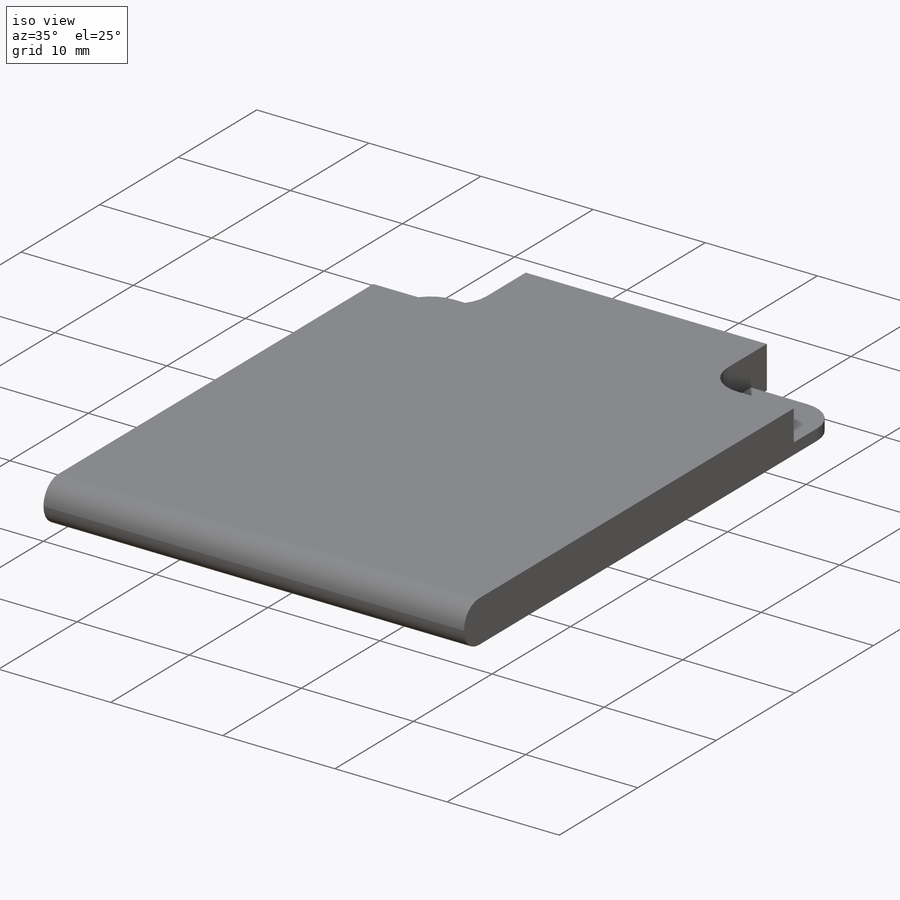
[diagram: iso view]
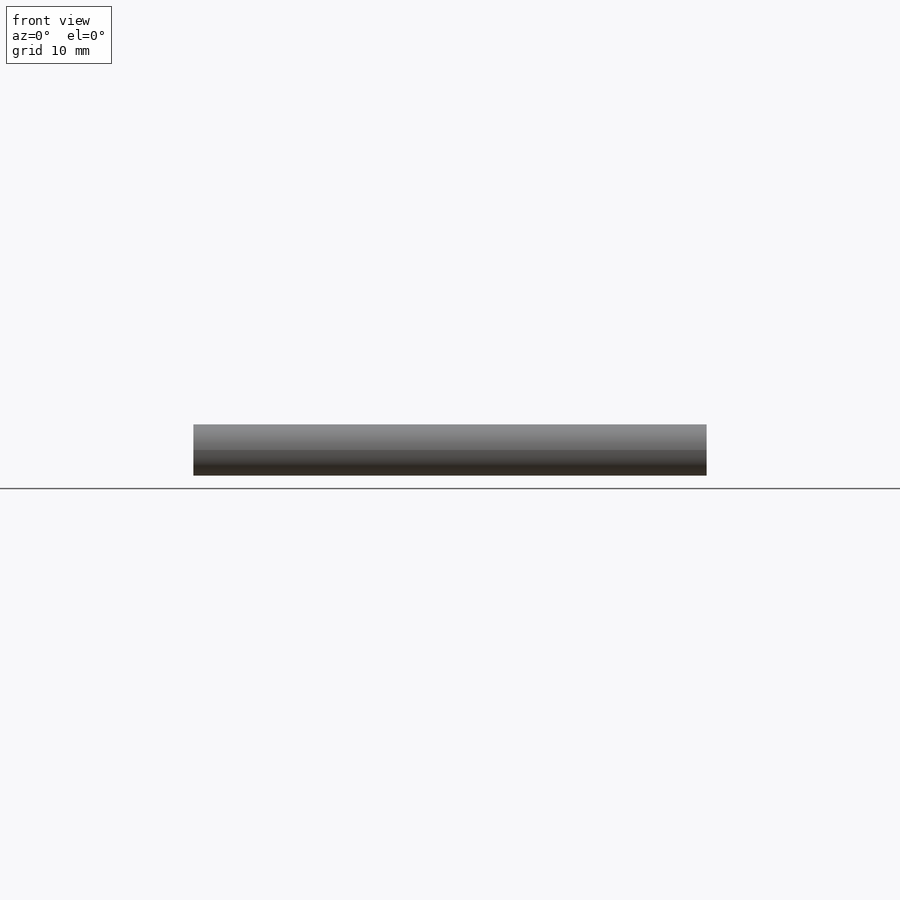
[diagram: front view]
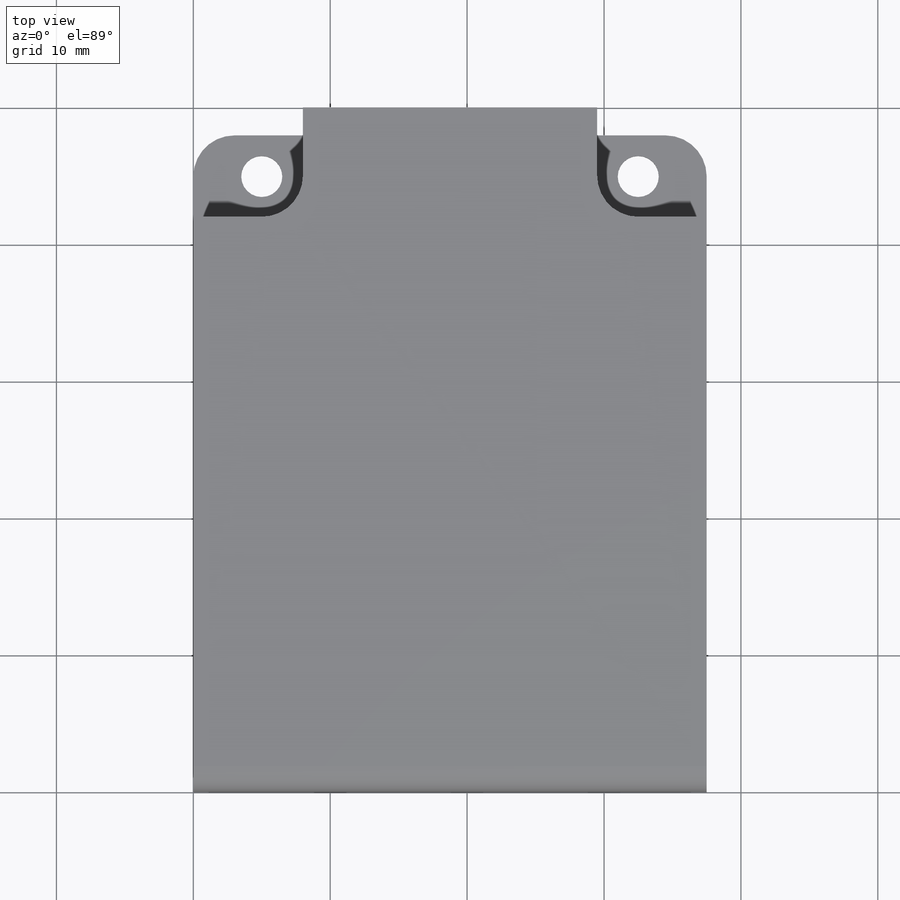
[diagram: top view]
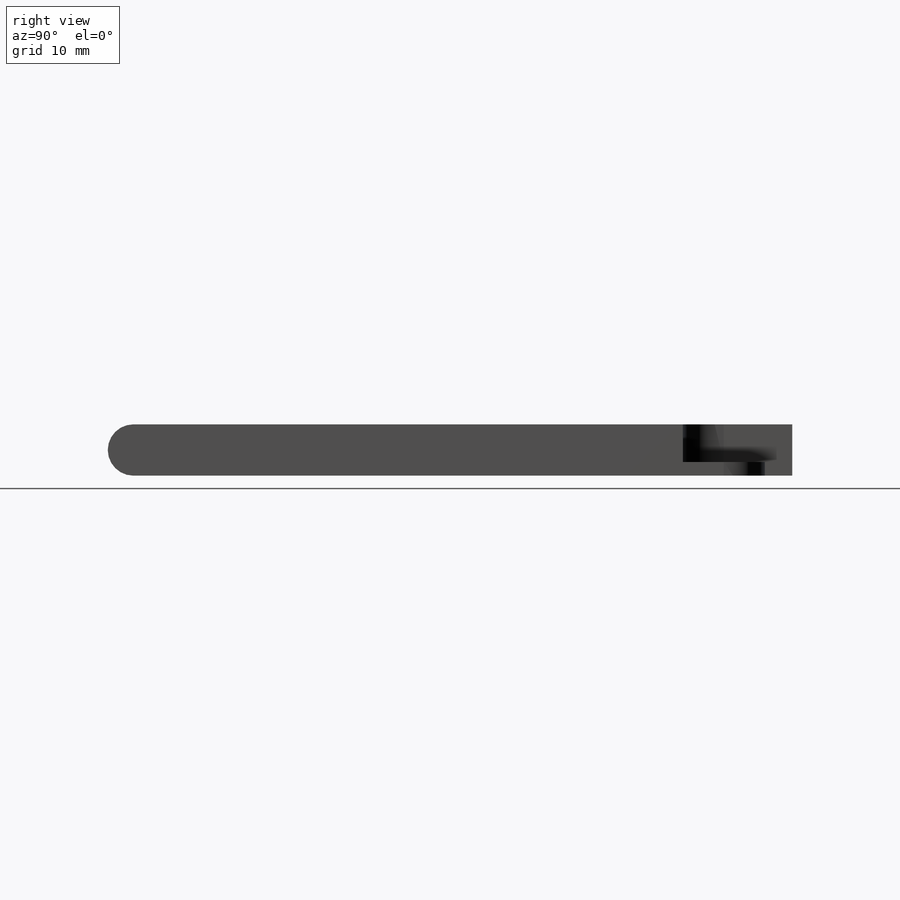
[diagram: right view]
SOLIDWORKS PART (.sldprt)
format: sldprt  version: not decoded by parser v0  size: 184,320 bytes
history: native  units: mm
features: sketch x2, fillet x2, material x1, extrude x1, cut_extrude x1 (+11 scaffold rows collapsed)
feature tree (18):
  scaffold x11  (default folders/planes/origin — collapsed)
  material  "Material <not specified>"
  sketch  "Sketch1"  dims[D3=3.0mm D1=50.0mm D2=8.0mm D4=3.0mm D5=2.0mm D6=5.0mm D7=5.0mm D8=37.5mm]
  extrude  "Boss-Extrude1"  Depth=3.75mm
  fillet  "Fillet1"  Radius=1.875mm
  sketch  "Sketch2"  dims[D2=3.0mm D1=6.0mm]
  cut_extrude  "Cut-Extrude1"  Depth=2.75mm
  fillet  "Fillet2"  Radius=3mm
decode coverage: 6 of 6 modeling features carry decoded parameters
note: suppression state not decoded; provenance and decode notes live in map.json
